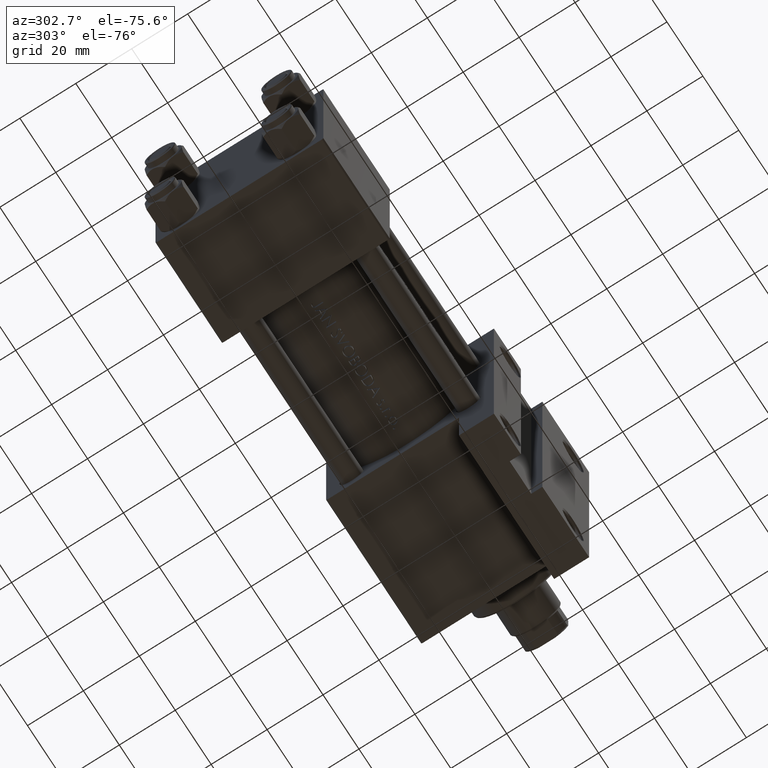
[diagram: clean part render]
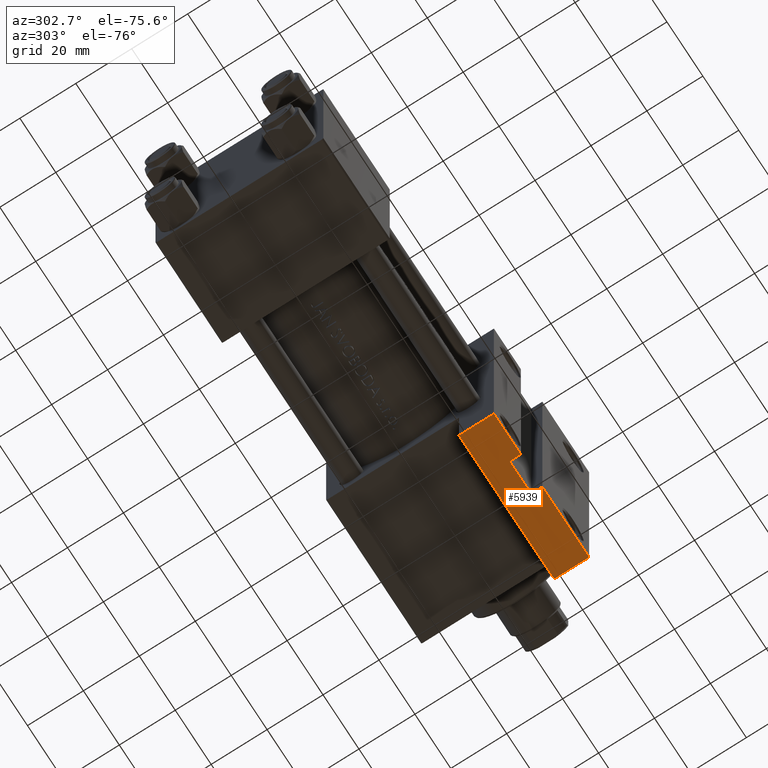
[diagram: same view with one face highlighted and labeled with its STEP entity id]
A machine part, auxiliary view. The second image highlights one B-rep face of the part: STEP entity #5939.
In plain terms, the highlighted planar face has unit normal (0, 0, -1).
Its self-contained STEP definition (entity closure, byte-faithful):
#373 = VERTEX_POINT ( 'NONE', #48122 ) ;
#1518 = DIRECTION ( 'NONE',  ( -1.000000000000000000, 2.618450529776313247E-16, 0.000000000000000000 ) ) ;
#1865 = VERTEX_POINT ( 'NONE', #31764 ) ;
#2034 = VECTOR ( 'NONE', #23676, 1000.000000000000000 ) ;
#2831 = LINE ( 'NONE', #40532, #13383 ) ;
#4023 = ORIENTED_EDGE ( 'NONE', *, *, #15095, .F. ) ;
#4276 = EDGE_CURVE ( 'NONE', #373, #18261, #2831, .T. ) ;
#5939 = ADVANCED_FACE ( 'NONE', ( #46861 ), #39710, .T. ) ;
#6130 = EDGE_CURVE ( 'NONE', #373, #26590, #8623, .T. ) ;
#7389 = VECTOR ( 'NONE', #13183, 1000.000000000000000 ) ;
#8623 = LINE ( 'NONE', #27117, #2034 ) ;
#10584 = CARTESIAN_POINT ( 'NONE',  ( 121.9999999999999858, 51.50000000000000711, -25.99999999999999645 ) ) ;
#12792 = ORIENTED_EDGE ( 'NONE', *, *, #44947, .F. ) ;
#13183 = DIRECTION ( 'NONE',  ( 1.000000000000000000, 0.000000000000000000, 0.000000000000000000 ) ) ;
#13366 = CARTESIAN_POINT ( 'NONE',  ( 95.00000000000000000, 51.50000000000000711, -17.49999999999999645 ) ) ;
#13383 = VECTOR ( 'NONE', #44222, 1000.000000000000000 ) ;
#13812 = CARTESIAN_POINT ( 'NONE',  ( 148.0000000000000000, 51.49999999999999289, -17.49999999999999645 ) ) ;
#14056 = DIRECTION ( 'NONE',  ( 0.000000000000000000, 0.000000000000000000, -1.000000000000000000 ) ) ;
#15095 = EDGE_CURVE ( 'NONE', #26445, #1865, #28309, .T. ) ;
#16101 = DIRECTION ( 'NONE',  ( -0.000000000000000000, -0.000000000000000000, -1.000000000000000000 ) ) ;
#16210 = CARTESIAN_POINT ( 'NONE',  ( 148.0000000000000000, 51.49999999999999289, -29.99999999999999645 ) ) ;
#17519 = LINE ( 'NONE', #13812, #22740 ) ;
#17709 = VECTOR ( 'NONE', #43412, 1000.000000000000000 ) ;
#18119 = EDGE_CURVE ( 'NONE', #1865, #28739, #29498, .T. ) ;
#18261 = VERTEX_POINT ( 'NONE', #27274 ) ;
#18494 = EDGE_CURVE ( 'NONE', #44640, #31249, #46384, .T. ) ;
#18973 = EDGE_LOOP ( 'NONE', ( #4023, #35572, #36052, #12792, #31701, #33839, #37430, #29073 ) ) ;
#20584 = LINE ( 'NONE', #46921, #7389 ) ;
#20762 = DIRECTION ( 'NONE',  ( 2.618450529776313247E-16, 1.000000000000000000, 0.000000000000000000 ) ) ;
#22740 = VECTOR ( 'NONE', #14056, 1000.000000000000000 ) ;
#23676 = DIRECTION ( 'NONE',  ( 0.000000000000000000, 0.000000000000000000, -1.000000000000000000 ) ) ;
#25315 = CARTESIAN_POINT ( 'NONE',  ( 109.9999999999999858, 51.50000000000000711, -25.99999999999999645 ) ) ;
#25351 = CARTESIAN_POINT ( 'NONE',  ( 121.9999999999999858, 51.50000000000000711, -25.99999999999999645 ) ) ;
#25584 = DIRECTION ( 'NONE',  ( -0.000000000000000000, -0.000000000000000000, -1.000000000000000000 ) ) ;
#25739 = VECTOR ( 'NONE', #16101, 1000.000000000000000 ) ;
#25806 = CARTESIAN_POINT ( 'NONE',  ( 95.00000000000000000, 51.50000000000000711, -29.99999999999999645 ) ) ;
#26345 = EDGE_CURVE ( 'NONE', #18261, #28739, #17519, .T. ) ;
#26445 = VERTEX_POINT ( 'NONE', #10584 ) ;
#26590 = VERTEX_POINT ( 'NONE', #27326 ) ;
#27117 = CARTESIAN_POINT ( 'NONE',  ( 95.00000000000000000, 51.50000000000000711, -17.49999999999999645 ) ) ;
#27274 = CARTESIAN_POINT ( 'NONE',  ( 148.0000000000000000, 51.49999999999999289, -17.49999999999999645 ) ) ;
#27326 = CARTESIAN_POINT ( 'NONE',  ( 95.00000000000000000, 51.50000000000000711, -29.99999999999999645 ) ) ;
#27864 = DIRECTION ( 'NONE',  ( 1.000000000000000000, -2.618450529776313247E-16, 0.000000000000000000 ) ) ;
#27905 = CARTESIAN_POINT ( 'NONE',  ( 95.00000000000000000, 51.50000000000000711, -29.99999999999999645 ) ) ;
#28309 = LINE ( 'NONE', #25351, #31938 ) ;
#28394 = LINE ( 'NONE', #27905, #17709 ) ;
#28739 = VERTEX_POINT ( 'NONE', #16210 ) ;
#29073 = ORIENTED_EDGE ( 'NONE', *, *, #18119, .F. ) ;
#29258 = CARTESIAN_POINT ( 'NONE',  ( 109.9999999999999858, 51.50000000000000711, -29.99999999999999645 ) ) ;
#29498 = LINE ( 'NONE', #25806, #32858 ) ;
#31249 = VERTEX_POINT ( 'NONE', #29258 ) ;
#31701 = ORIENTED_EDGE ( 'NONE', *, *, #6130, .F. ) ;
#31764 = CARTESIAN_POINT ( 'NONE',  ( 121.9999999999999858, 51.50000000000000711, -29.99999999999999645 ) ) ;
#31938 = VECTOR ( 'NONE', #25584, 1000.000000000000000 ) ;
#32858 = VECTOR ( 'NONE', #27864, 1000.000000000000000 ) ;
#33839 = ORIENTED_EDGE ( 'NONE', *, *, #4276, .T. ) ;
#33882 = AXIS2_PLACEMENT_3D ( 'NONE', #13366, #20762, #1518 ) ;
#35057 = CARTESIAN_POINT ( 'NONE',  ( 109.9999999999999858, 51.50000000000000711, -25.99999999999999645 ) ) ;
#35572 = ORIENTED_EDGE ( 'NONE', *, *, #40609, .F. ) ;
#36052 = ORIENTED_EDGE ( 'NONE', *, *, #18494, .T. ) ;
#37430 = ORIENTED_EDGE ( 'NONE', *, *, #26345, .T. ) ;
#39710 = PLANE ( 'NONE',  #33882 ) ;
#40532 = CARTESIAN_POINT ( 'NONE',  ( 95.00000000000000000, 51.50000000000000711, -17.49999999999999645 ) ) ;
#40609 = EDGE_CURVE ( 'NONE', #44640, #26445, #20584, .T. ) ;
#43412 = DIRECTION ( 'NONE',  ( 1.000000000000000000, -2.618450529776313247E-16, 0.000000000000000000 ) ) ;
#44222 = DIRECTION ( 'NONE',  ( 1.000000000000000000, -2.618450529776313247E-16, 0.000000000000000000 ) ) ;
#44640 = VERTEX_POINT ( 'NONE', #25315 ) ;
#44947 = EDGE_CURVE ( 'NONE', #26590, #31249, #28394, .T. ) ;
#46384 = LINE ( 'NONE', #35057, #25739 ) ;
#46861 = FACE_OUTER_BOUND ( 'NONE', #18973, .T. ) ;
#46921 = CARTESIAN_POINT ( 'NONE',  ( 109.9999999999999858, 51.50000000000000711, -25.99999999999999645 ) ) ;
#48122 = CARTESIAN_POINT ( 'NONE',  ( 95.00000000000000000, 51.50000000000000711, -17.49999999999999645 ) ) ;